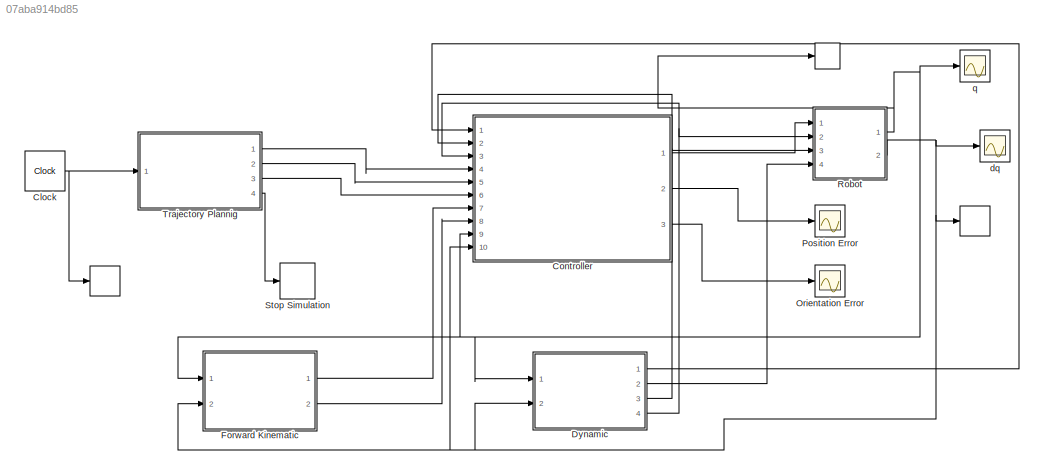
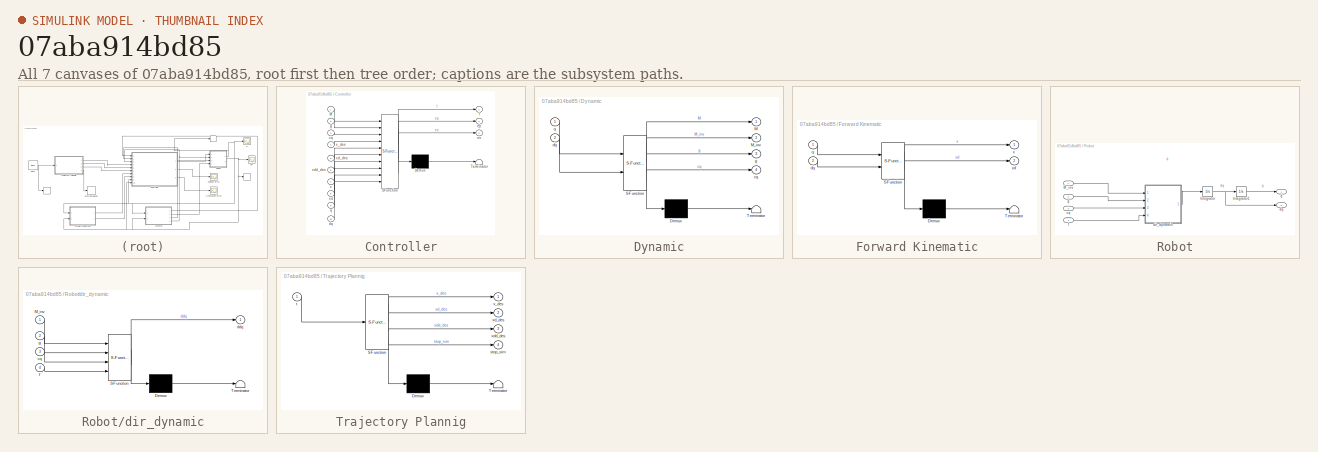
[diagram: thumbnail index - all 7 canvases of the model, root first then tree order]
MODEL slx_07aba914bd85
KIND model
BLOCK [ToWorkspace]   
  FixptAsFi = on
  MaxDataPoints = inf
  Ports = [1]
  SampleTime = -1
  Save2DSignal = 3-D array (concatenate along third dimension)
  VariableName = q
BLOCK [ToWorkspace]     
  FixptAsFi = on
  MaxDataPoints = inf
  Ports = [1]
  SampleTime = -1
  Save2DSignal = 3-D array (concatenate along third dimension)
  VariableName = dq
BLOCK [ToWorkspace]       
  FixptAsFi = on
  MaxDataPoints = inf
  Ports = [1]
  SampleTime = -1
  Save2DSignal = 3-D array (concatenate along third dimension)
  VariableName = t
BLOCK [Clock] Clock
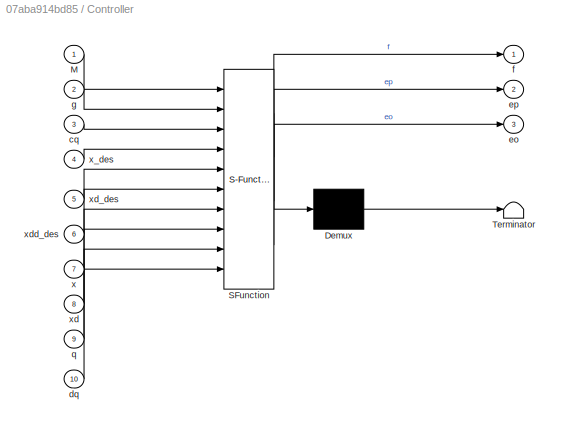
BLOCK [SubSystem] Controller
  ErrorFcn = Stateflow.Translate.translate
  PermitHierarchicalResolution = ExplicitOnly
  Ports = [10, 3]
  RequestExecContextInheritance = off
  SFBlockType = MATLAB Function
  TreatAsAtomicUnit = on
BLOCK [Demux] Controller/ Demux 
  Outputs = 1
  Ports = [1, 1]
BLOCK [S-Function] Controller/ SFunction 
  EnableBusSupport = on
  FunctionName = sf_sfun
  PortCounts = [10 4]
  Ports = [10, 4]
  Tag = Stateflow S-Function simlwrkuka_dynamic_dirdyn 1
BLOCK [Terminator] Controller/ Terminator 
BLOCK [Inport] Controller/M
  IconDisplay = Port number
BLOCK [Inport] Controller/cq
  IconDisplay = Port number
  Port = 3
BLOCK [Inport] Controller/dq
  IconDisplay = Port number
  Port = 10
BLOCK [Outport] Controller/eo
  IconDisplay = Port number
  Port = 3
BLOCK [Outport] Controller/ep
  IconDisplay = Port number
  Port = 2
BLOCK [Outport] Controller/f
  IconDisplay = Port number
BLOCK [Inport] Controller/g
  IconDisplay = Port number
  Port = 2
BLOCK [Inport] Controller/q
  IconDisplay = Port number
  Port = 9
BLOCK [Inport] Controller/x
  IconDisplay = Port number
  Port = 7
BLOCK [Inport] Controller/x_des
  IconDisplay = Port number
  Port = 4
BLOCK [Inport] Controller/xd
  IconDisplay = Port number
  Port = 8
BLOCK [Inport] Controller/xd_des
  IconDisplay = Port number
  Port = 5
BLOCK [Inport] Controller/xdd_des
  IconDisplay = Port number
  Port = 6
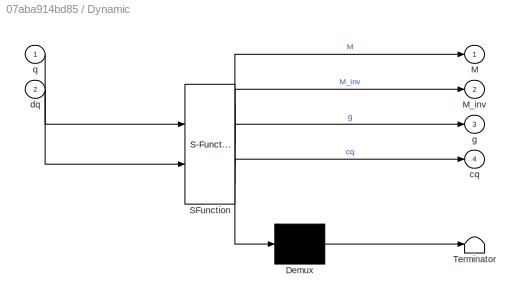
BLOCK [SubSystem] Dynamic
  ErrorFcn = Stateflow.Translate.translate
  PermitHierarchicalResolution = ExplicitOnly
  Ports = [2, 4]
  RequestExecContextInheritance = off
  SFBlockType = MATLAB Function
  TreatAsAtomicUnit = on
BLOCK [Demux] Dynamic/ Demux 
  Outputs = 1
  Ports = [1, 1]
BLOCK [S-Function] Dynamic/ SFunction 
  EnableBusSupport = on
  FunctionName = sf_sfun
  PortCounts = [2 5]
  Ports = [2, 5]
  Tag = Stateflow S-Function simlwrkuka_dynamic_dirdyn 5
BLOCK [Terminator] Dynamic/ Terminator 
BLOCK [Outport] Dynamic/M
  IconDisplay = Port number
BLOCK [Outport] Dynamic/M_inv
  IconDisplay = Port number
  Port = 2
BLOCK [Outport] Dynamic/cq
  IconDisplay = Port number
  Port = 4
BLOCK [Inport] Dynamic/dq
  IconDisplay = Port number
  Port = 2
BLOCK [Outport] Dynamic/g
  IconDisplay = Port number
  Port = 3
BLOCK [Inport] Dynamic/q
  IconDisplay = Port number
BLOCK [SubSystem] Forward Kinematic
  ErrorFcn = Stateflow.Translate.translate
  PermitHierarchicalResolution = ExplicitOnly
  Ports = [2, 2]
  RequestExecContextInheritance = off
  SFBlockType = MATLAB Function
  TreatAsAtomicUnit = on
BLOCK [Demux] Forward Kinematic/ Demux 
  Outputs = 1
  Ports = [1, 1]
BLOCK [S-Function] Forward Kinematic/ SFunction 
  EnableBusSupport = on
  FunctionName = sf_sfun
  PortCounts = [2 3]
  Ports = [2, 3]
  Tag = Stateflow S-Function simlwrkuka_dynamic_dirdyn 4
BLOCK [Terminator] Forward Kinematic/ Terminator 
BLOCK [Inport] Forward Kinematic/dq
  IconDisplay = Port number
  Port = 2
BLOCK [Inport] Forward Kinematic/q
  IconDisplay = Port number
BLOCK [Outport] Forward Kinematic/x
  IconDisplay = Port number
BLOCK [Outport] Forward Kinematic/xd
  IconDisplay = Port number
  Port = 2
BLOCK [Scope] Orientation Error
  Floating = off
  NumInputPorts = 1
  Ports = [1]
  SaveName = ScopeData2
  ShowLegends = off
  ZoomMode = yonly
BLOCK [Scope] Position Error 
  Floating = off
  NumInputPorts = 1
  Ports = [1]
  SaveName = ScopeData1
  ShowLegends = off
BLOCK [SubSystem] Robot
  Ports = [4, 2]
  RequestExecContextInheritance = off
BLOCK [Integrator] Robot/Integrator
  InitialCondition = dqi
  Ports = [1, 1]
BLOCK [Integrator] Robot/Integrator1
  InitialCondition = qi
  Ports = [1, 1]
BLOCK [Inport] Robot/M_inv
  IconDisplay = Port number
  Port = 4
BLOCK [Inport] Robot/cq
  IconDisplay = Port number
  Port = 2
BLOCK [SubSystem] Robot/dir_dynamic
  ErrorFcn = Stateflow.Translate.translate
  PermitHierarchicalResolution = ExplicitOnly
  Ports = [4, 1]
  RequestExecContextInheritance = off
  SFBlockType = MATLAB Function
  TreatAsAtomicUnit = on
BLOCK [Demux] Robot/dir_dynamic/ Demux 
  Outputs = 1
  Ports = [1, 1]
BLOCK [S-Function] Robot/dir_dynamic/ SFunction 
  EnableBusSupport = on
  FunctionName = sf_sfun
  PortCounts = [4 2]
  Ports = [4, 2]
  Tag = Stateflow S-Function simlwrkuka_dynamic_dirdyn 3
BLOCK [Terminator] Robot/dir_dynamic/ Terminator 
BLOCK [Inport] Robot/dir_dynamic/M_inv
  IconDisplay = Port number
BLOCK [Inport] Robot/dir_dynamic/cq
  IconDisplay = Port number
  Port = 3
BLOCK [Outport] Robot/dir_dynamic/ddq
  IconDisplay = Port number
BLOCK [Inport] Robot/dir_dynamic/f
  IconDisplay = Port number
  Port = 4
BLOCK [Inport] Robot/dir_dynamic/g
  IconDisplay = Port number
  Port = 2
BLOCK [Outport] Robot/dq
  IconDisplay = Port number
  Port = 2
BLOCK [Inport] Robot/f
  IconDisplay = Port number
BLOCK [Inport] Robot/g
  IconDisplay = Port number
  Port = 3
BLOCK [Outport] Robot/q
  IconDisplay = Port number
BLOCK [Stop] Stop Simulation
BLOCK [SubSystem] Trajectory Plannig
  ErrorFcn = Stateflow.Translate.translate
  PermitHierarchicalResolution = ExplicitOnly
  Ports = [1, 4]
  RequestExecContextInheritance = off
  SFBlockType = MATLAB Function
  TreatAsAtomicUnit = on
BLOCK [Demux] Trajectory Plannig/ Demux 
  Outputs = 1
  Ports = [1, 1]
BLOCK [S-Function] Trajectory Plannig/ SFunction 
  EnableBusSupport = on
  FunctionName = sf_sfun
  PortCounts = [1 5]
  Ports = [1, 5]
  Tag = Stateflow S-Function simlwrkuka_dynamic_dirdyn 2
BLOCK [Terminator] Trajectory Plannig/ Terminator 
BLOCK [Outport] Trajectory Plannig/stop_sim
  IconDisplay = Port number
  Port = 4
BLOCK [Inport] Trajectory Plannig/t
  IconDisplay = Port number
BLOCK [Outport] Trajectory Plannig/x_des
  IconDisplay = Port number
BLOCK [Outport] Trajectory Plannig/xd_des
  IconDisplay = Port number
  Port = 2
BLOCK [Outport] Trajectory Plannig/xdd_des
  IconDisplay = Port number
  Port = 3
BLOCK [Scope] dq
  Floating = off
  NumInputPorts = 1
  Ports = [1]
  SaveName = ScopeData3
  ShowLegends = off
BLOCK [Scope] q
  Floating = off
  NumInputPorts = 1
  Ports = [1]
  ShowLegends = off
ANNOTATION Robot: dq
ANNOTATION Robot: q
NET Clock:1 ->       :1, Trajectory Plannig:1
LINE Controller:1 -> Robot:1
LINE Controller:2 -> Position Error :1
LINE Controller:3 -> Orientation Error:1
LINE Dynamic:1 -> Controller:1
LINE Dynamic:2 -> Robot:4
NET Dynamic:3 -> Controller:2, Robot:3
NET Dynamic:4 -> Controller:3, Robot:2
LINE Forward Kinematic:1 -> Controller:7
LINE Forward Kinematic:2 -> Controller:8
LINE Robot/Integrator1:1 -> Robot/q:1
NET Robot/Integrator:1 -> Robot/Integrator1:1, Robot/dq:1
LINE Robot/M_inv:1 -> Robot/dir_dynamic:1
LINE Robot/cq:1 -> Robot/dir_dynamic:3
LINE Robot/dir_dynamic:1 -> Robot/Integrator:1
LINE Robot/f:1 -> Robot/dir_dynamic:4
LINE Robot/g:1 -> Robot/dir_dynamic:2
NET Robot:1 ->   :1, Controller:9, Dynamic:1, Forward Kinematic:1, q:1
NET Robot:2 ->     :1, Controller:10, Dynamic:2, Forward Kinematic:2, dq:1
LINE Trajectory Plannig:1 -> Controller:4
LINE Trajectory Plannig:2 -> Controller:5
LINE Trajectory Plannig:3 -> Controller:6
LINE Trajectory Plannig:4 -> Stop Simulation:1
note: NET lines group one-source signal fan-out (src -> all destinations, sorted); 1:1 wires keep LINE
